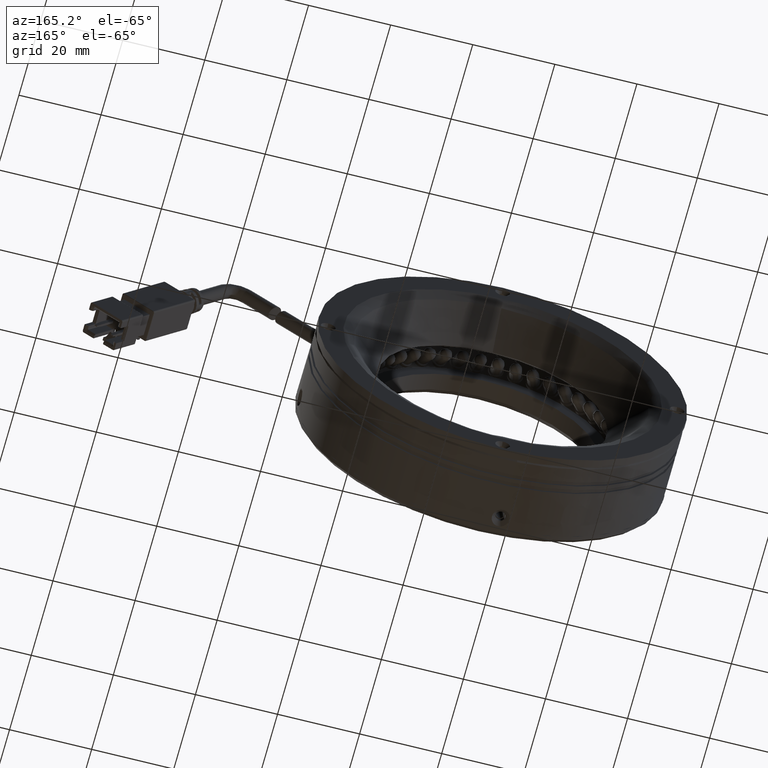
[diagram: clean part render]
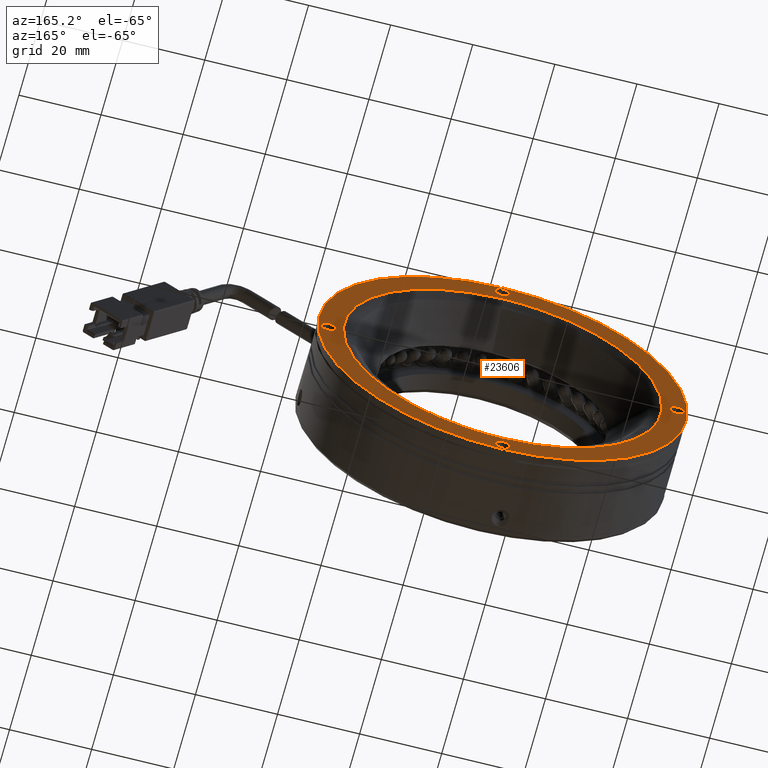
[diagram: same view with one face highlighted and labeled with its STEP entity id]
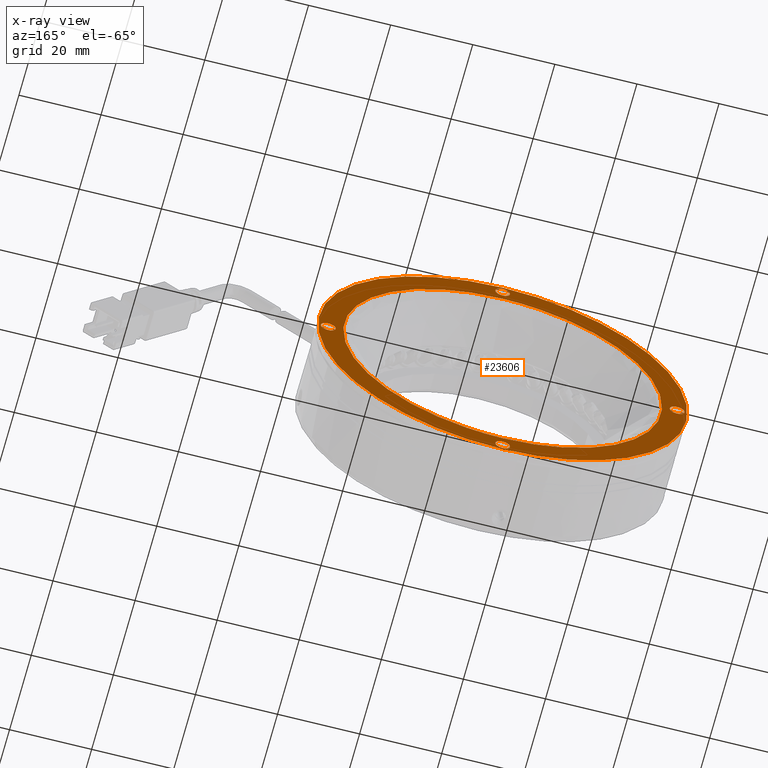
[diagram: x-ray of the same camera — body ghosted, the highlighted face saturated]
A machine part, auxiliary view. The second image highlights one B-rep face of the part: STEP entity #23606.
The next image is the same camera in x-ray: the body ghosted, the highlighted face saturated — about 0% of this face is hidden behind the body in this view.
In plain terms, the highlighted planar face has unit normal (0, -1, 0).
Its self-contained STEP definition (entity closure, byte-faithful):
#502 = ORIENTED_EDGE ( 'NONE', *, *, #79351, .F. ) ;
#543 = VERTEX_POINT ( 'NONE', #22418 ) ;
#2603 = CARTESIAN_POINT ( 'NONE',  ( -11.49004085520083300, 38.97876601230196100, -5.597922368143827900 ) ) ;
#4472 = ORIENTED_EDGE ( 'NONE', *, *, #4583, .F. ) ;
#4583 = EDGE_CURVE ( 'NONE', #25097, #62160, #88239, .T. ) ;
#5161 = ORIENTED_EDGE ( 'NONE', *, *, #55480, .F. ) ;
#5388 = CIRCLE ( 'NONE', #124178, 1.799999999984723600 ) ;
#6346 = CIRCLE ( 'NONE', #53683, 45.00000000000000000 ) ;
#7767 = EDGE_CURVE ( 'NONE', #60141, #104431, #8616, .T. ) ;
#8038 = DIRECTION ( 'NONE',  ( 0.0000000000000000000, 1.000000000000000000, 0.0000000000000000000 ) ) ;
#8616 = CIRCLE ( 'NONE', #67939, 1.800000000059753800 ) ;
#9980 = EDGE_CURVE ( 'NONE', #12947, #98399, #38718, .T. ) ;
#10115 = CARTESIAN_POINT ( 'NONE',  ( -53.99004085520083900, 38.97876601230196100, -48.09792236806791300 ) ) ;
#12947 = VERTEX_POINT ( 'NONE', #30715 ) ;
#14434 = FACE_BOUND ( 'NONE', #55171, .T. ) ;
#14911 = CARTESIAN_POINT ( 'NONE',  ( 23.66681339429154500, 38.97876601230221600, -42.62634949282938400 ) ) ;
#16241 = AXIS2_PLACEMENT_3D ( 'NONE', #34829, #107678, #45303 ) ;
#17710 = FACE_OUTER_BOUND ( 'NONE', #59389, .T. ) ;
#22418 = CARTESIAN_POINT ( 'NONE',  ( -11.49004085520083300, 38.97876601230196100, -1.997922368023430400 ) ) ;
#22680 = CARTESIAN_POINT ( 'NONE',  ( -131.6468951046932100, 38.97876601230221600, 35.03050475666302100 ) ) ;
#22749 = DIRECTION ( 'NONE',  ( 0.0000000000000000000, -1.000000000000000000, 0.0000000000000000000 ) ) ;
#23536 = EDGE_CURVE ( 'NONE', #23645, #52793, #6346, .T. ) ;
#23606 = ADVANCED_FACE ( 'NONE', ( #17710, #69763, #27474, #42062, #14434, #121945 ), #55341, .F. ) ;
#23645 = VERTEX_POINT ( 'NONE', #108985 ) ;
#24464 = ORIENTED_EDGE ( 'NONE', *, *, #83813, .F. ) ;
#25097 = VERTEX_POINT ( 'NONE', #41211 ) ;
#27474 = FACE_BOUND ( 'NONE', #126036, .T. ) ;
#28565 = DIRECTION ( 'NONE',  ( 0.0000000000000000000, 1.000000000000000000, 0.0000000000000000000 ) ) ;
#29571 = DIRECTION ( 'NONE',  ( 0.0000000000000000000, 1.000000000000000000, 0.0000000000000000000 ) ) ;
#30629 = DIRECTION ( 'NONE',  ( 0.0000000000000000000, 1.000000000000000000, 0.0000000000000000000 ) ) ;
#30715 = CARTESIAN_POINT ( 'NONE',  ( -53.99004085520083900, 38.97876601230222300, -42.62634949282938400 ) ) ;
#31368 = EDGE_CURVE ( 'NONE', #62160, #25097, #110114, .T. ) ;
#31633 = DIRECTION ( 'NONE',  ( 0.0000000000000000000, 1.000000000000000000, 0.0000000000000000000 ) ) ;
#33570 = CARTESIAN_POINT ( 'NONE',  ( -131.6468951046932100, 38.97876601230221600, -42.62634949282938400 ) ) ;
#34829 = CARTESIAN_POINT ( 'NONE',  ( -8.990040855200838600, 38.97876601230221600, -3.797922368083184200 ) ) ;
#36922 = ORIENTED_EDGE ( 'NONE', *, *, #102183, .F. ) ;
#38718 =( BOUNDED_CURVE ( )  B_SPLINE_CURVE ( 3, ( #44020, #33570, #22680, #116889 ),
 .UNSPECIFIED., .F., .F. ) 
 B_SPLINE_CURVE_WITH_KNOTS ( ( 4, 4 ),
 ( 0.0000000000000000000, 1.000000000000000000 ),
 .UNSPECIFIED. ) 
 CURVE ( )  GEOMETRIC_REPRESENTATION_ITEM ( )  RATIONAL_B_SPLINE_CURVE ( ( 1.000000000000000000, 0.3333333333333333700, 0.3333333333333333700, 1.000000000000000000 ) ) 
 REPRESENTATION_ITEM ( '' )  );
#40510 = DIRECTION ( 'NONE',  ( 0.0000000000000000000, 1.000000000000000000, 0.0000000000000000000 ) ) ;
#41211 = CARTESIAN_POINT ( 'NONE',  ( -53.99004085520083900, 38.97876601230196100, 36.90207763189572200 ) ) ;
#42062 = FACE_BOUND ( 'NONE', #119861, .T. ) ;
#43128 = EDGE_CURVE ( 'NONE', #543, #99831, #45789, .T. ) ;
#43910 = CARTESIAN_POINT ( 'NONE',  ( -96.49004085520084600, 38.97876601230211000, -3.797922368083035800 ) ) ;
#43950 = CARTESIAN_POINT ( 'NONE',  ( -53.99004085520083900, 38.97876601230221600, -3.797922368083184200 ) ) ;
#44020 = CARTESIAN_POINT ( 'NONE',  ( -53.99004085520083900, 38.97876601230222300, -42.62634949282938400 ) ) ;
#45303 = DIRECTION ( 'NONE',  ( 0.0000000000000000000, 0.0000000000000000000, -1.000000000000000000 ) ) ;
#45789 = CIRCLE ( 'NONE', #78762, 1.800000000060198800 ) ;
#50891 = CARTESIAN_POINT ( 'NONE',  ( -53.99004085520083900, 38.97876601230196100, 38.70207763191682200 ) ) ;
#52793 = VERTEX_POINT ( 'NONE', #53130 ) ;
#53130 = CARTESIAN_POINT ( 'NONE',  ( -53.99004085520083900, 38.97876601230221600, 41.20207763191681500 ) ) ;
#53683 = AXIS2_PLACEMENT_3D ( 'NONE', #43950, #116824, #54459 ) ;
#54417 = DIRECTION ( 'NONE',  ( 0.0000000000000000000, 0.0000000000000000000, 1.000000000000000000 ) ) ;
#54459 = DIRECTION ( 'NONE',  ( 0.0000000000000000000, 0.0000000000000000000, 1.000000000000000000 ) ) ;
#55171 = EDGE_LOOP ( 'NONE', ( #95677, #4472 ) ) ;
#55341 = PLANE ( 'NONE',  #16241 ) ;
#55480 = EDGE_CURVE ( 'NONE', #104431, #60141, #105046, .T. ) ;
#55701 = ORIENTED_EDGE ( 'NONE', *, *, #59043, .F. ) ;
#56291 = CARTESIAN_POINT ( 'NONE',  ( 23.66681339429155500, 38.97876601230221600, 35.03050475666300700 ) ) ;
#57988 = AXIS2_PLACEMENT_3D ( 'NONE', #85067, #22749, #95506 ) ;
#58062 = EDGE_LOOP ( 'NONE', ( #69258, #502 ) ) ;
#59043 = EDGE_CURVE ( 'NONE', #99831, #543, #106687, .T. ) ;
#59389 = EDGE_LOOP ( 'NONE', ( #36922, #125911 ) ) ;
#60141 = VERTEX_POINT ( 'NONE', #86295 ) ;
#61293 = DIRECTION ( 'NONE',  ( 0.0000000000000000000, 0.0000000000000000000, 1.000000000000000000 ) ) ;
#62160 = VERTEX_POINT ( 'NONE', #92539 ) ;
#67939 = AXIS2_PLACEMENT_3D ( 'NONE', #43910, #116781, #54417 ) ;
#69258 = ORIENTED_EDGE ( 'NONE', *, *, #9980, .F. ) ;
#69763 = FACE_BOUND ( 'NONE', #58062, .T. ) ;
#70344 = CARTESIAN_POINT ( 'NONE',  ( -53.99004085520083900, 38.97876601230196100, 38.70207763191682200 ) ) ;
#71444 = VERTEX_POINT ( 'NONE', #10115 ) ;
#78762 = AXIS2_PLACEMENT_3D ( 'NONE', #102871, #40510, #113375 ) ;
#79351 = EDGE_CURVE ( 'NONE', #98399, #12947, #112232, .T. ) ;
#80666 = AXIS2_PLACEMENT_3D ( 'NONE', #91880, #29571, #102415 ) ;
#80809 = DIRECTION ( 'NONE',  ( 0.0000000000000000000, 0.0000000000000000000, 1.000000000000000000 ) ) ;
#83813 = EDGE_CURVE ( 'NONE', #71444, #99348, #98241, .T. ) ;
#85067 = CARTESIAN_POINT ( 'NONE',  ( -53.99004085520083900, 38.97876601230221600, -3.797922368083184200 ) ) ;
#86295 = CARTESIAN_POINT ( 'NONE',  ( -96.49004085520084600, 38.97876601230211000, -1.997922368023284700 ) ) ;
#87643 = CARTESIAN_POINT ( 'NONE',  ( -53.99004085520083900, 38.97876601230222300, -42.62634949282938400 ) ) ;
#88239 = CIRCLE ( 'NONE', #91776, 1.800000000021097200 ) ;
#90816 = CARTESIAN_POINT ( 'NONE',  ( -53.99004085520083900, 38.97876601230196100, -46.29792236808318500 ) ) ;
#91776 = AXIS2_PLACEMENT_3D ( 'NONE', #70344, #8038, #80809 ) ;
#91880 = CARTESIAN_POINT ( 'NONE',  ( -96.49004085520084600, 38.97876601230211000, -3.797922368083035800 ) ) ;
#92246 = AXIS2_PLACEMENT_3D ( 'NONE', #90816, #28565, #101362 ) ;
#92539 = CARTESIAN_POINT ( 'NONE',  ( -53.99004085520083900, 38.97876601230196100, 40.50207763193791500 ) ) ;
#92912 = CARTESIAN_POINT ( 'NONE',  ( -11.49004085520083300, 38.97876601230196100, -3.797922368083629200 ) ) ;
#93904 = CARTESIAN_POINT ( 'NONE',  ( -53.99004085520083900, 38.97876601230196100, -46.29792236808318500 ) ) ;
#95506 = DIRECTION ( 'NONE',  ( 0.0000000000000000000, 0.0000000000000000000, 1.000000000000000000 ) ) ;
#95677 = ORIENTED_EDGE ( 'NONE', *, *, #31368, .F. ) ;
#96097 = ORIENTED_EDGE ( 'NONE', *, *, #7767, .F. ) ;
#98241 = CIRCLE ( 'NONE', #92246, 1.799999999984723600 ) ;
#98399 = VERTEX_POINT ( 'NONE', #99400 ) ;
#99146 = CARTESIAN_POINT ( 'NONE',  ( -53.99004085520083900, 38.97876601230196100, -44.49792236809846500 ) ) ;
#99348 = VERTEX_POINT ( 'NONE', #99146 ) ;
#99400 = CARTESIAN_POINT ( 'NONE',  ( -53.99004085520083200, 38.97876601230222300, 35.03050475666301400 ) ) ;
#99831 = VERTEX_POINT ( 'NONE', #2603 ) ;
#100828 = CARTESIAN_POINT ( 'NONE',  ( -96.49004085520084600, 38.97876601230211000, -5.597922368142787000 ) ) ;
#101362 = DIRECTION ( 'NONE',  ( 0.0000000000000000000, 0.0000000000000000000, 1.000000000000000000 ) ) ;
#101425 = ORIENTED_EDGE ( 'NONE', *, *, #110218, .F. ) ;
#102183 = EDGE_CURVE ( 'NONE', #52793, #23645, #124471, .T. ) ;
#102415 = DIRECTION ( 'NONE',  ( 0.0000000000000000000, 0.0000000000000000000, 1.000000000000000000 ) ) ;
#102871 = CARTESIAN_POINT ( 'NONE',  ( -11.49004085520083300, 38.97876601230196100, -3.797922368083629200 ) ) ;
#103445 = DIRECTION ( 'NONE',  ( 0.0000000000000000000, 0.0000000000000000000, 1.000000000000000000 ) ) ;
#104431 = VERTEX_POINT ( 'NONE', #100828 ) ;
#104436 = DIRECTION ( 'NONE',  ( 0.0000000000000000000, 0.0000000000000000000, 1.000000000000000000 ) ) ;
#105046 = CIRCLE ( 'NONE', #80666, 1.800000000059753800 ) ;
#106687 = CIRCLE ( 'NONE', #110178, 1.800000000060198800 ) ;
#107678 = DIRECTION ( 'NONE',  ( 0.0000000000000000000, -1.000000000000000000, 0.0000000000000000000 ) ) ;
#108985 = CARTESIAN_POINT ( 'NONE',  ( -53.99004085520083200, 38.97876601230221600, -48.79792236808318500 ) ) ;
#110114 = CIRCLE ( 'NONE', #120914, 1.800000000021097200 ) ;
#110178 = AXIS2_PLACEMENT_3D ( 'NONE', #92912, #30629, #103445 ) ;
#110218 = EDGE_CURVE ( 'NONE', #99348, #71444, #5388, .T. ) ;
#112232 =( BOUNDED_CURVE ( )  B_SPLINE_CURVE ( 3, ( #129157, #56291, #14911, #87643 ),
 .UNSPECIFIED., .F., .T. ) 
 B_SPLINE_CURVE_WITH_KNOTS ( ( 4, 4 ),
 ( 0.0000000000000000000, 1.000000000000000000 ),
 .UNSPECIFIED. ) 
 CURVE ( )  GEOMETRIC_REPRESENTATION_ITEM ( )  RATIONAL_B_SPLINE_CURVE ( ( 1.000000000000000000, 0.3333333333333333700, 0.3333333333333333700, 1.000000000000000000 ) ) 
 REPRESENTATION_ITEM ( '' )  );
#113375 = DIRECTION ( 'NONE',  ( 0.0000000000000000000, 0.0000000000000000000, 1.000000000000000000 ) ) ;
#116781 = DIRECTION ( 'NONE',  ( 0.0000000000000000000, 1.000000000000000000, 0.0000000000000000000 ) ) ;
#116824 = DIRECTION ( 'NONE',  ( 0.0000000000000000000, -1.000000000000000000, 0.0000000000000000000 ) ) ;
#116889 = CARTESIAN_POINT ( 'NONE',  ( -53.99004085520083200, 38.97876601230222300, 35.03050475666301400 ) ) ;
#119861 = EDGE_LOOP ( 'NONE', ( #96097, #5161 ) ) ;
#120914 = AXIS2_PLACEMENT_3D ( 'NONE', #50891, #123772, #61293 ) ;
#121945 = FACE_BOUND ( 'NONE', #127924, .T. ) ;
#123772 = DIRECTION ( 'NONE',  ( 0.0000000000000000000, 1.000000000000000000, 0.0000000000000000000 ) ) ;
#124178 = AXIS2_PLACEMENT_3D ( 'NONE', #93904, #31633, #104436 ) ;
#124471 = CIRCLE ( 'NONE', #57988, 45.00000000000000000 ) ;
#125911 = ORIENTED_EDGE ( 'NONE', *, *, #23536, .F. ) ;
#126036 = EDGE_LOOP ( 'NONE', ( #101425, #24464 ) ) ;
#127924 = EDGE_LOOP ( 'NONE', ( #129277, #55701 ) ) ;
#129157 = CARTESIAN_POINT ( 'NONE',  ( -53.99004085520083200, 38.97876601230222300, 35.03050475666301400 ) ) ;
#129277 = ORIENTED_EDGE ( 'NONE', *, *, #43128, .F. ) ;